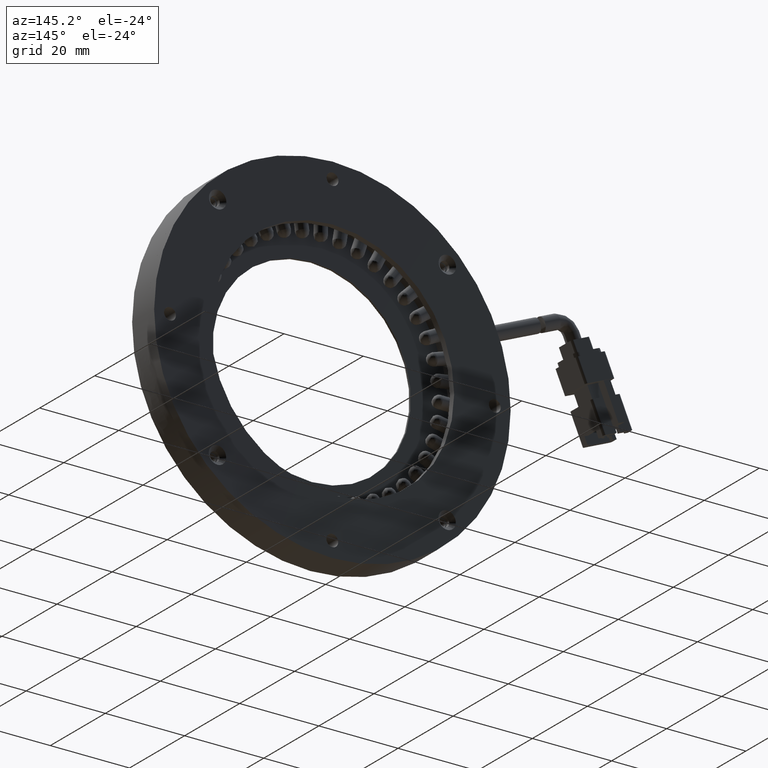
[diagram: clean part render]
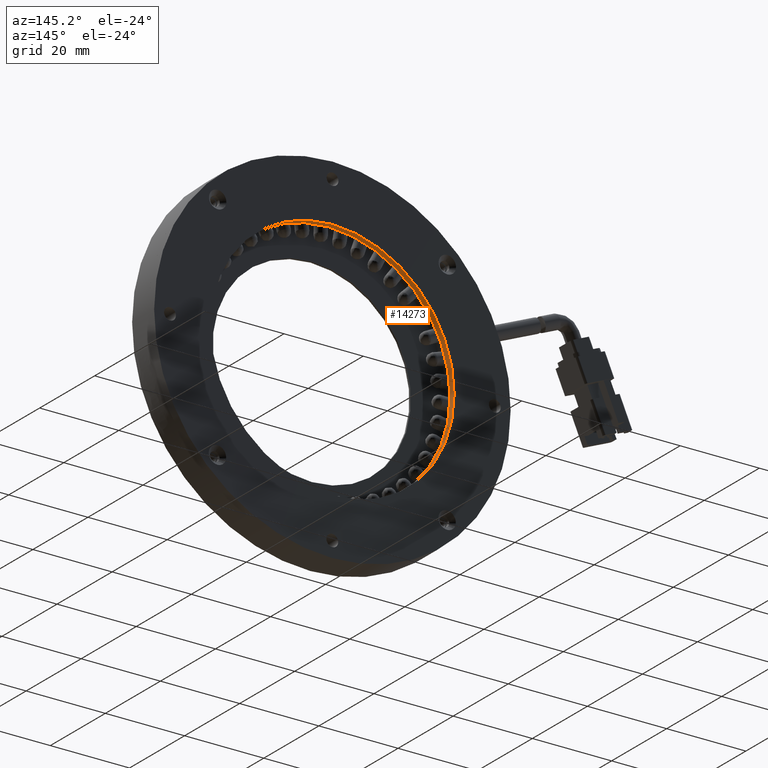
[diagram: same view with one face highlighted and labeled with its STEP entity id]
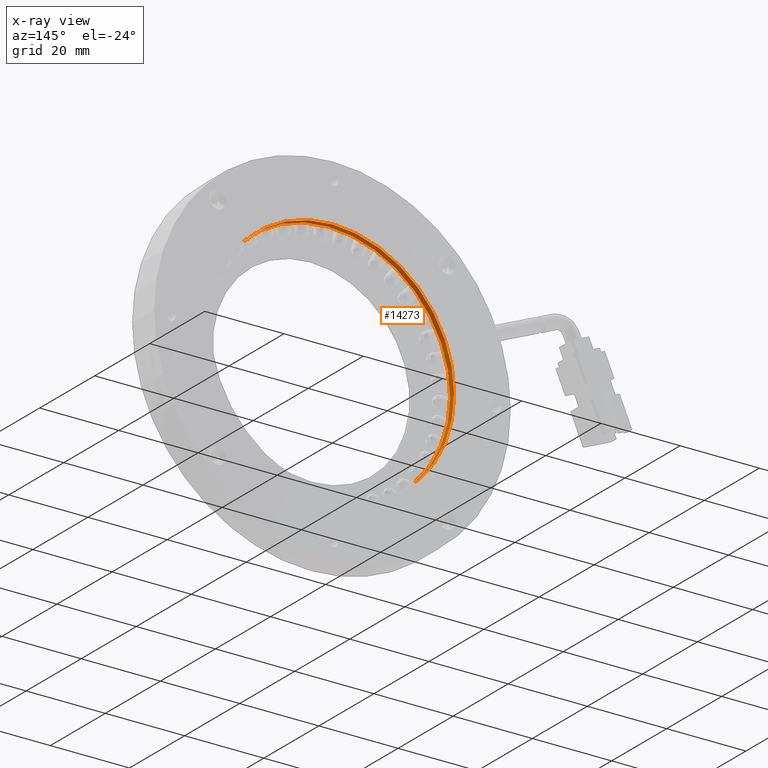
[diagram: x-ray of the same camera — body ghosted, the highlighted face saturated]
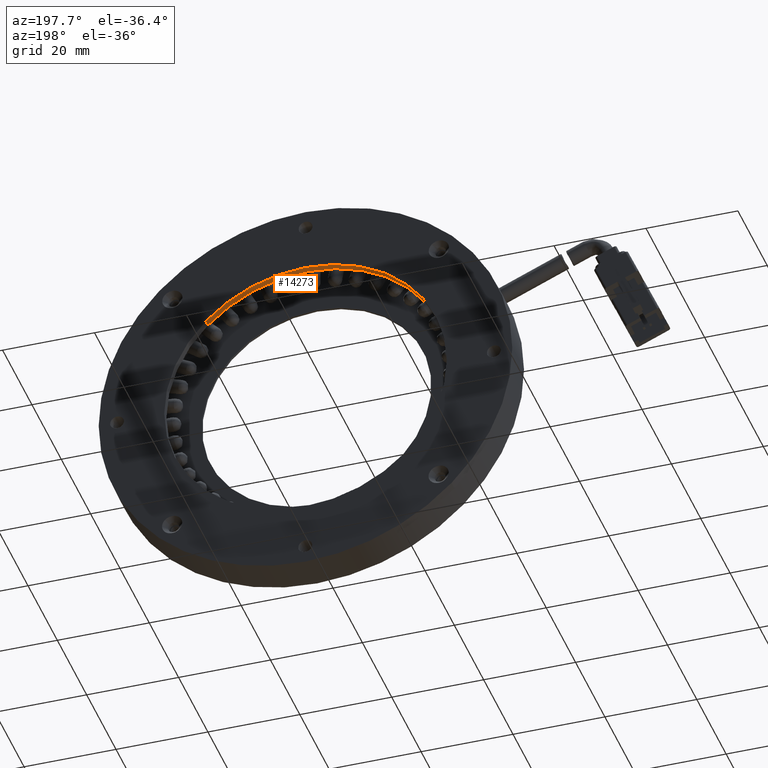
[diagram: same view with one face highlighted and labeled with its STEP entity id]
A machine part, auxiliary view. The second image highlights one B-rep face of the part: STEP entity #14273.
The next image is the same camera in x-ray: the body ghosted, the highlighted face saturated — about 0% of this face is hidden behind the body in this view.
A second angle (auxiliary view) of the same face is appended — the face is thin or edge-on in the first view.
In plain terms, the highlighted cylindrical surface (partial cylindrical patch) has radius 30.74 mm, axis along (-0, 1, -0).
Its self-contained STEP definition (entity closure, byte-faithful):
#1196 = EDGE_CURVE ( 'NONE', #20708, #14340, #3406, .T. ) ;
#2064 = CARTESIAN_POINT ( 'NONE',  ( 25.28996387029088000, 7.623552123552125100, 21.75437483523881700 ) ) ;
#2876 = CYLINDRICAL_SURFACE ( 'NONE', #23933, 30.74000000000000200 ) ;
#3406 = CIRCLE ( 'NONE', #33722, 30.74000000000000200 ) ;
#3585 = EDGE_CURVE ( 'NONE', #33517, #36793, #12010, .T. ) ;
#5847 = ORIENTED_EDGE ( 'NONE', *, *, #12973, .F. ) ;
#7724 = CARTESIAN_POINT ( 'NONE',  ( 3.571428571428565800, 7.623552123552121500, 0.0000000000000000000 ) ) ;
#8065 = DIRECTION ( 'NONE',  ( -1.163897087407499700E-016, 1.000000000000000000, -2.939373556709199600E-017 ) ) ;
#8338 = DIRECTION ( 'NONE',  ( -1.163897087407499700E-016, 1.000000000000000000, -2.939373556709199600E-017 ) ) ;
#8954 = VECTOR ( 'NONE', #8065, 1000.000000000000000 ) ;
#11263 = CARTESIAN_POINT ( 'NONE',  ( 3.571428571428565800, 7.623552123552121500, 0.0000000000000000000 ) ) ;
#12010 = CIRCLE ( 'NONE', #21764, 30.74000000000000200 ) ;
#12973 = EDGE_CURVE ( 'NONE', #36793, #14340, #29684, .T. ) ;
#14271 = DIRECTION ( 'NONE',  ( 0.7065235946279216900, 1.128642469731169200E-016, 0.7076894871580616800 ) ) ;
#14273 = ADVANCED_FACE ( 'NONE', ( #30899 ), #2876, .F. ) ;
#14289 = CARTESIAN_POINT ( 'NONE',  ( 25.28996387029088000, 7.623552123552125100, 21.75437483523881700 ) ) ;
#14340 = VERTEX_POINT ( 'NONE', #14289 ) ;
#15279 = CARTESIAN_POINT ( 'NONE',  ( 25.28996387029088000, 6.123552123552125100, 21.75437483523881700 ) ) ;
#15978 = DIRECTION ( 'NONE',  ( -1.163897087407499700E-016, 1.000000000000000000, -2.939373556709199600E-017 ) ) ;
#17300 = LINE ( 'NONE', #30196, #8954 ) ;
#18174 = ORIENTED_EDGE ( 'NONE', *, *, #38366, .T. ) ;
#18647 = DIRECTION ( 'NONE',  ( 0.7065235946279216900, 1.128642469731169200E-016, 0.7076894871580616800 ) ) ;
#19670 = CARTESIAN_POINT ( 'NONE',  ( -18.14710672743374400, 7.623552123552118000, -21.75437483523882100 ) ) ;
#19676 = CARTESIAN_POINT ( 'NONE',  ( 3.571428571428565800, 6.123552123552121500, 0.0000000000000000000 ) ) ;
#20708 = VERTEX_POINT ( 'NONE', #19670 ) ;
#20981 = ORIENTED_EDGE ( 'NONE', *, *, #1196, .T. ) ;
#21246 = VECTOR ( 'NONE', #8338, 1000.000000000000000 ) ;
#21764 = AXIS2_PLACEMENT_3D ( 'NONE', #19676, #34306, #18647 ) ;
#23933 = AXIS2_PLACEMENT_3D ( 'NONE', #7724, #26544, #29881 ) ;
#26544 = DIRECTION ( 'NONE',  ( -1.163897087407499700E-016, 1.000000000000000000, -2.939373556709199600E-017 ) ) ;
#29684 = LINE ( 'NONE', #2064, #21246 ) ;
#29881 = DIRECTION ( 'NONE',  ( 0.7065235946279216900, 1.128642469731169200E-016, 0.7076894871580616800 ) ) ;
#30045 = ORIENTED_EDGE ( 'NONE', *, *, #3585, .F. ) ;
#30196 = CARTESIAN_POINT ( 'NONE',  ( -18.14710672743374400, 7.623552123552118000, -21.75437483523882100 ) ) ;
#30899 = FACE_OUTER_BOUND ( 'NONE', #31378, .T. ) ;
#31378 = EDGE_LOOP ( 'NONE', ( #30045, #18174, #20981, #5847 ) ) ;
#33517 = VERTEX_POINT ( 'NONE', #38425 ) ;
#33722 = AXIS2_PLACEMENT_3D ( 'NONE', #11263, #15978, #14271 ) ;
#34306 = DIRECTION ( 'NONE',  ( -1.163897087407499700E-016, 1.000000000000000000, -2.939373556709199600E-017 ) ) ;
#36793 = VERTEX_POINT ( 'NONE', #15279 ) ;
#38366 = EDGE_CURVE ( 'NONE', #33517, #20708, #17300, .T. ) ;
#38425 = CARTESIAN_POINT ( 'NONE',  ( -18.14710672743374400, 6.123552123552118000, -21.75437483523882100 ) ) ;